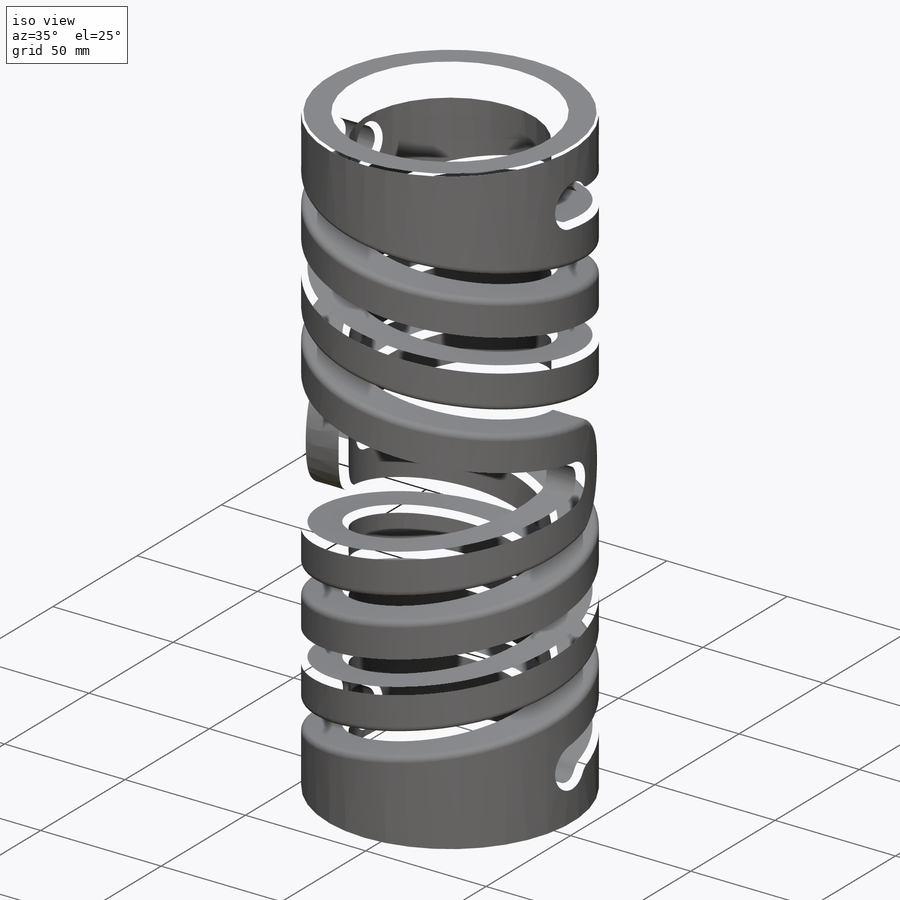
[diagram: iso view]
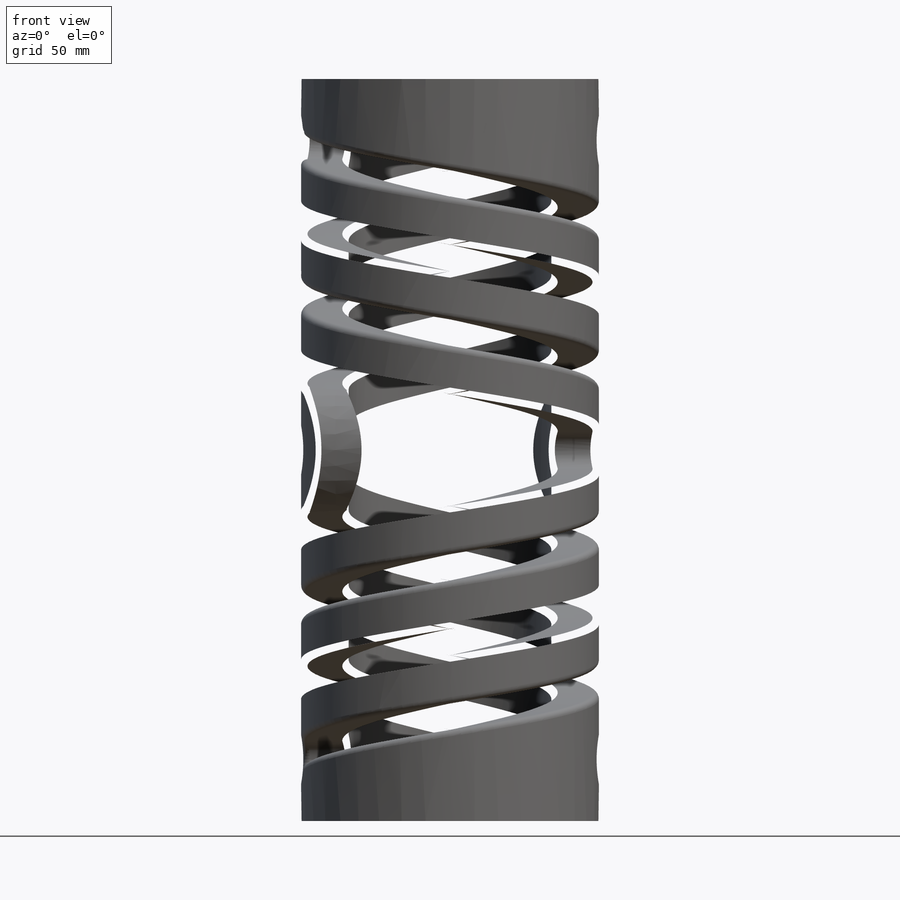
[diagram: front view]
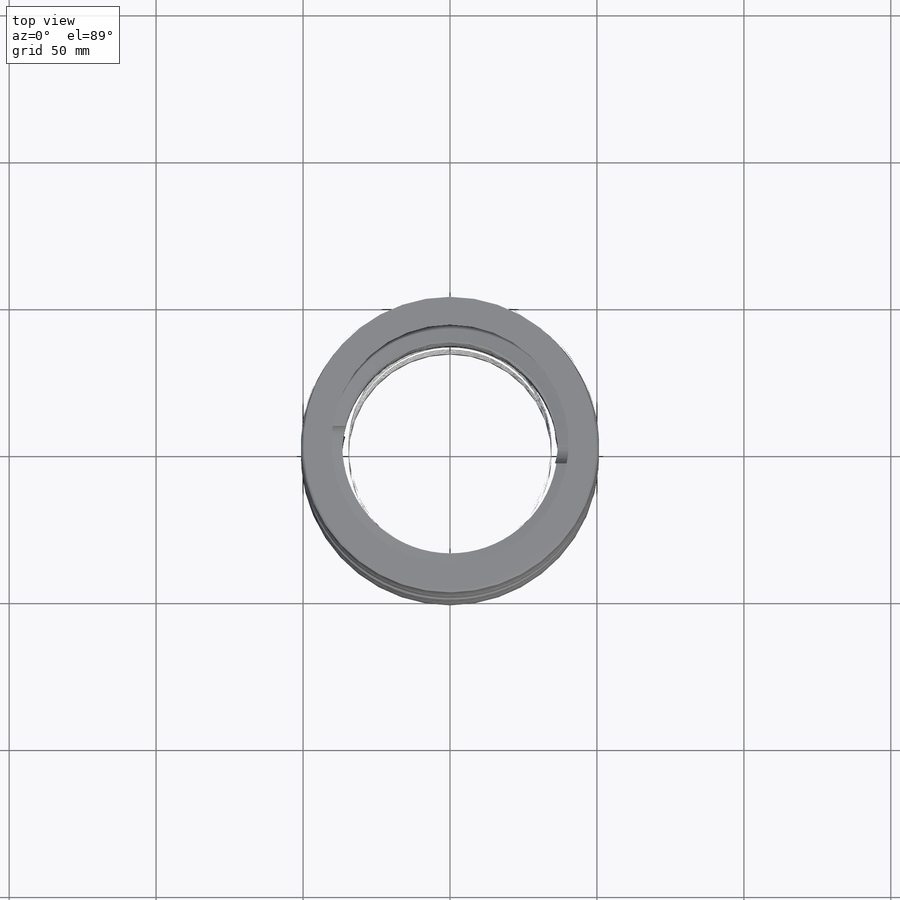
[diagram: top view]
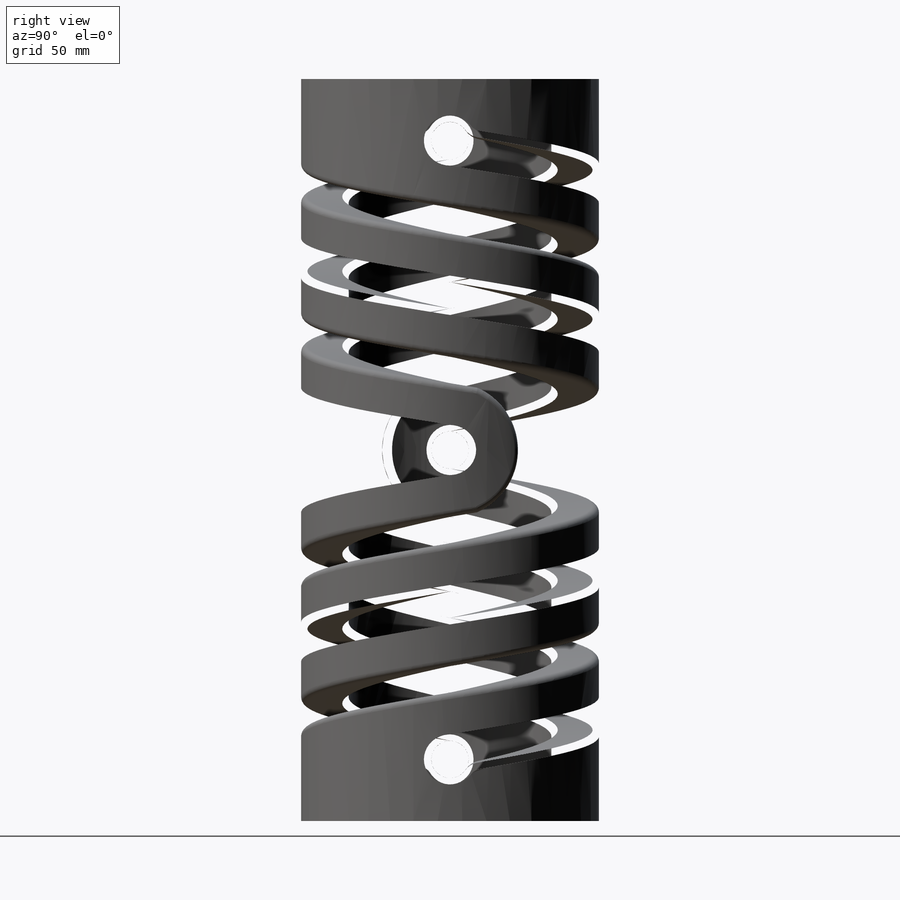
[diagram: right view]
SOLIDWORKS PART (.sldprt)
format: sldprt  version: not decoded by parser v0  size: 1,796,608 bytes
history: native  units: mm
features: sketch x14, cut_extrude x5, fillet x5, helix x4, sweep x4, plane x2, delete_body x2, material x1, extrude x1, chamfer x1 + 1 further entry (+13 scaffold rows collapsed)
feature tree (53):
  scaffold x13  (default folders/planes/origin — collapsed)
  material  "MARAGING 300"
  "Origin"  ID=392984584
  sketch  "Sketch1"  dims[D1=69.0118mm D2=101.346mm]
  extrude  "Extrude1"  Depth=254mm
  sketch  "Sketch2"  dims[D2=12.7mm D1=21.717mm]
  cut_extrude  "Cut-Extrude1"  [1 undecoded]
  plane  "Plane1"  Offset=21.717mm
  plane  "Plane2"  Offset=21.717mm
  sketch  "Sketch3"
  helix  "Helix/Spiral1"  Pitch=101.6mm
  sketch  "Sketch4"  dims[D1=21.717mm D2=9.017mm]
  sweep  "Cut-Sweep1"
  sketch  "Sketch5"
  helix  "Helix/Spiral2"  Pitch=101.6mm
  sketch  "Sketch6"
  sweep  "Cut-Sweep2"
  sketch  "Sketch7"
  helix  "Helix/Spiral3"  Pitch=101.6mm
  sketch  "Sketch8"
  sweep  "Cut-Sweep3"
  sketch  "Sketch10"
  helix  "Helix/Spiral4"  Pitch=101.6mm
  sketch  "Sketch11"
  sweep  "Cut-Sweep4"
  sketch  "Sketch12"  dims[D1=3.048mm D2=25.4mm]
  cut_extrude  "Cut-Extrude2"  Depth=50.8mm
  delete_body  "Body-Delete1"
  sketch  "Sketch14"  dims[D1=3.048mm D2=25.4mm]
  cut_extrude  "Cut-Extrude3"  Depth=50.8mm
  delete_body  "Body-Delete2"
  fillet  "Fillet1"  Radius=6.35mm
  fillet  "Fillet3"  Radius=2.159mm
  fillet  "Fillet4"  Radius=2.159mm
  fillet  "Fillet5"  Radius=2.159mm
  fillet  "Fillet6"  Radius=2.159mm
  sketch  "Sketch15"  dims[D1=80.8228mm]
  cut_extrude  "Cut-Extrude4"  Depth=10.795mm
  sketch  "Sketch18"  dims[D1=~31.801155mm]
  cut_extrude  "Cut-Extrude5"  Depth=10.795mm
  chamfer  "Chamfer1"  Distance=0.762mm Angle=45deg
decode coverage: 22 of 36 modeling features carry decoded parameters; 1 rows unclassified (native names shown)
note: ~ marks probable driven/reference dimensions
note: 1 parameter value undecoded
summary: profile_refs inferred from adjacent sketches, not decoded
note: suppression state not decoded; provenance and decode notes live in map.json
